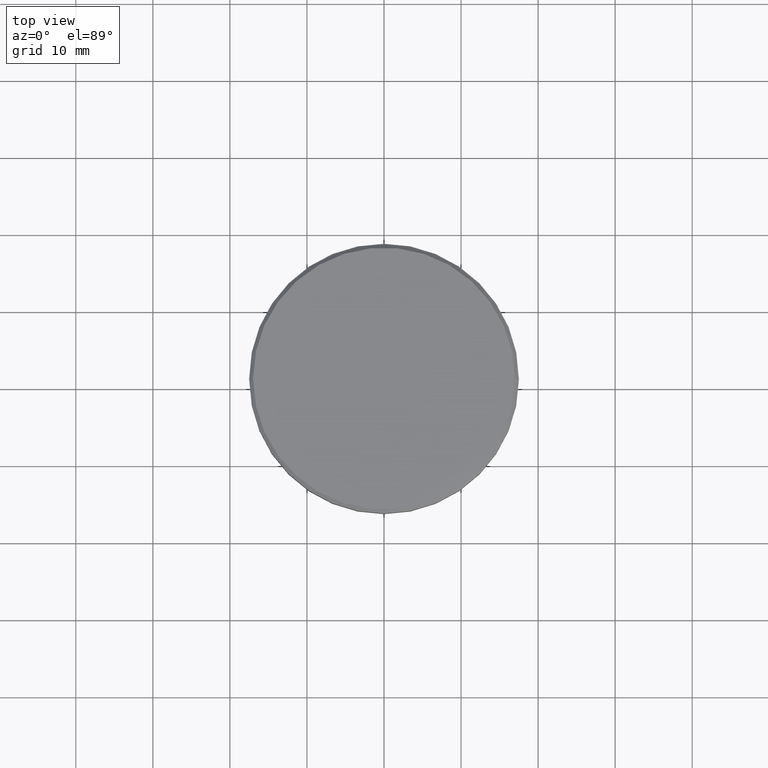
[diagram: clean part render]
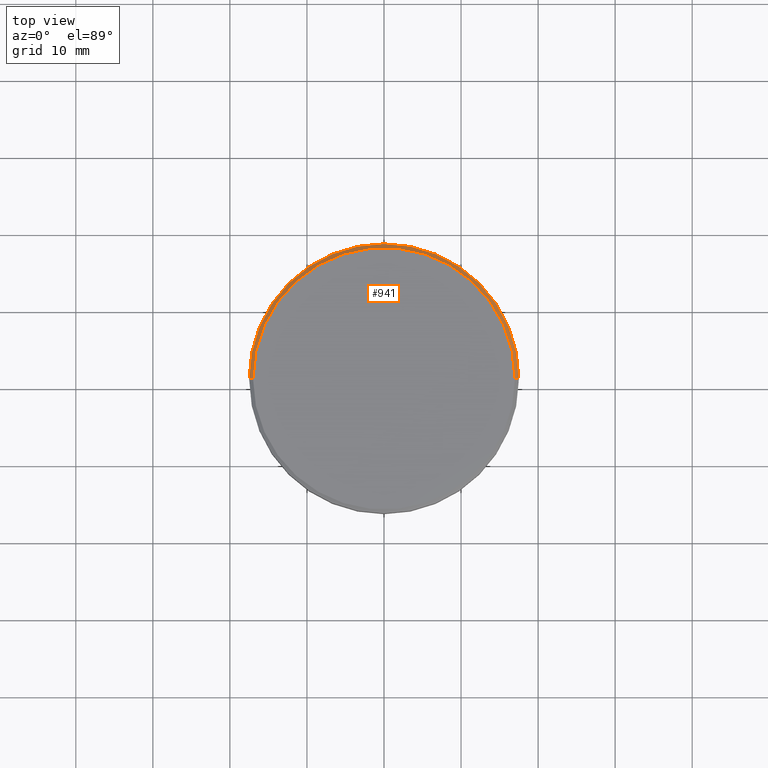
[diagram: same view with one face highlighted and labeled with its STEP entity id]
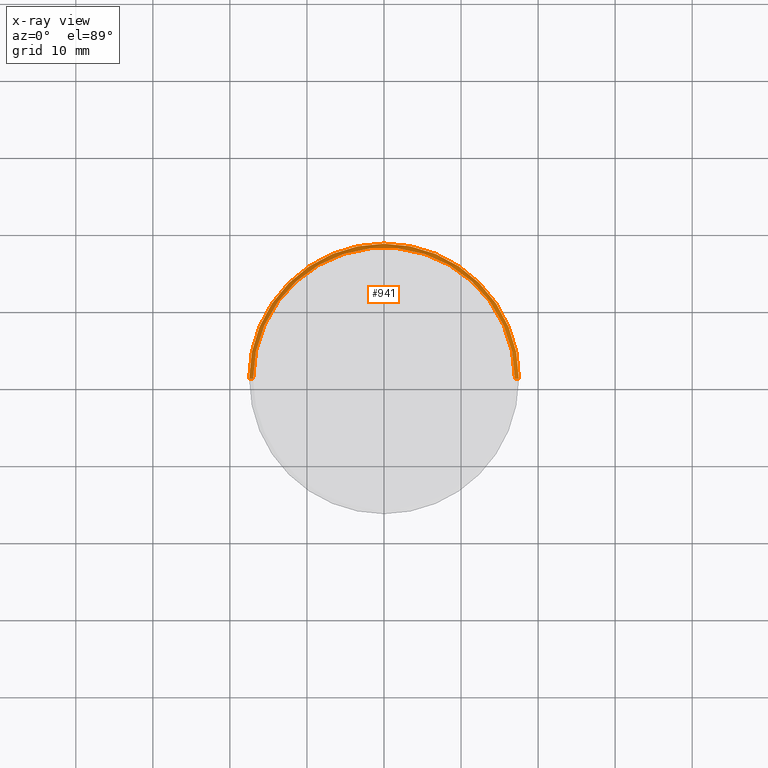
[diagram: x-ray of the same camera — body ghosted, the highlighted face saturated]
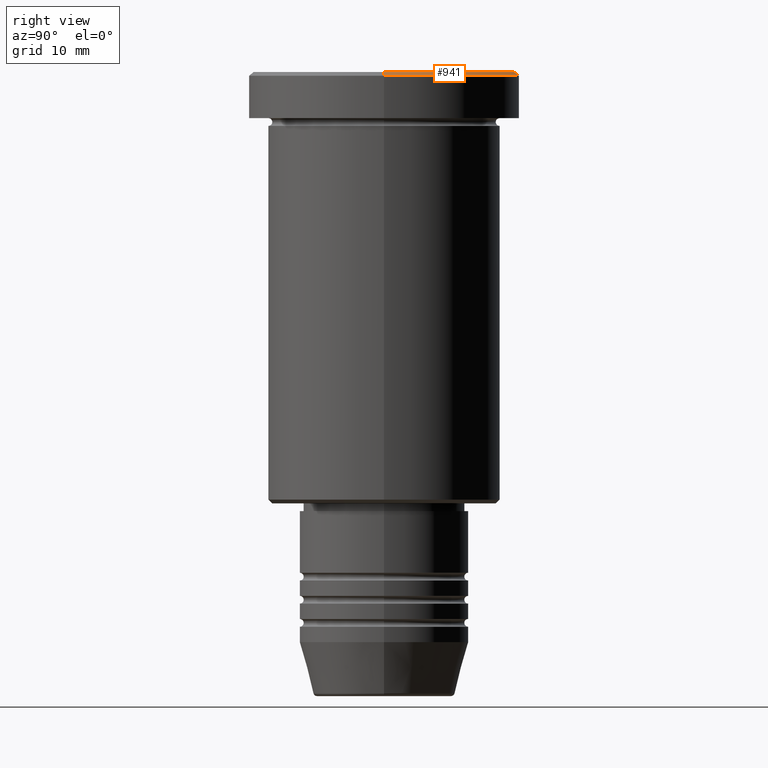
[diagram: same view with one face highlighted and labeled with its STEP entity id]
A machine part, top view. The second image highlights one B-rep face of the part: STEP entity #941.
The next image is the same camera in x-ray: the body ghosted, the highlighted face saturated — about 0% of this face is hidden behind the body in this view.
A second angle (right view) of the same face is appended — the face is thin or edge-on in the first view.
In plain terms, the highlighted conical surface has half-angle 45 deg.
Its self-contained STEP definition (entity closure, byte-faithful):
#18 = CONICAL_SURFACE ( 'NONE', #1140, 17.00000000000000000, 0.7853981633974346233 ) ;
#107 = VECTOR ( 'NONE', #765, 1000.000000000000000 ) ;
#129 = FACE_OUTER_BOUND ( 'NONE', #672, .T. ) ;
#157 = CARTESIAN_POINT ( 'NONE',  ( 0.000000000000000000, 0.000000000000000000, -0.5000000000000142109 ) ) ;
#163 = DIRECTION ( 'NONE',  ( 0.000000000000000000, 0.000000000000000000, -1.000000000000000000 ) ) ;
#184 = CARTESIAN_POINT ( 'NONE',  ( 0.000000000000000000, 0.000000000000000000, 0.000000000000000000 ) ) ;
#189 = EDGE_CURVE ( 'NONE', #704, #594, #692, .T. ) ;
#202 = AXIS2_PLACEMENT_3D ( 'NONE', #157, #163, #974 ) ;
#231 = CARTESIAN_POINT ( 'NONE',  ( 17.00000000000000000, 2.081899558550500280E-15, 0.000000000000000000 ) ) ;
#277 = ORIENTED_EDGE ( 'NONE', *, *, #837, .F. ) ;
#328 = CARTESIAN_POINT ( 'NONE',  ( -17.00000000000000000, 0.000000000000000000, 0.000000000000000000 ) ) ;
#347 = EDGE_CURVE ( 'NONE', #704, #1027, #859, .T. ) ;
#356 = CARTESIAN_POINT ( 'NONE',  ( 17.00000000000000000, 2.112515728529184067E-15, 0.000000000000000000 ) ) ;
#382 = ORIENTED_EDGE ( 'NONE', *, *, #189, .F. ) ;
#441 = CARTESIAN_POINT ( 'NONE',  ( -17.00000000000000000, 0.000000000000000000, 0.000000000000000000 ) ) ;
#483 = DIRECTION ( 'NONE',  ( -1.000000000000000000, 0.000000000000000000, 0.000000000000000000 ) ) ;
#563 = DIRECTION ( 'NONE',  ( 1.000000000000000000, 0.000000000000000000, 0.000000000000000000 ) ) ;
#594 = VERTEX_POINT ( 'NONE', #328 ) ;
#614 = ORIENTED_EDGE ( 'NONE', *, *, #347, .T. ) ;
#653 = DIRECTION ( 'NONE',  ( 0.000000000000000000, 0.000000000000000000, -1.000000000000000000 ) ) ;
#672 = EDGE_LOOP ( 'NONE', ( #382, #614, #1013, #277 ) ) ;
#692 = CIRCLE ( 'NONE', #903, 17.00000000000000000 ) ;
#704 = VERTEX_POINT ( 'NONE', #356 ) ;
#714 = VECTOR ( 'NONE', #1166, 1000.000000000000000 ) ;
#765 = DIRECTION ( 'NONE',  ( 0.7071067811865378028, 8.659560562354814529E-17, -0.7071067811865573427 ) ) ;
#832 = CARTESIAN_POINT ( 'NONE',  ( 17.50000000000000000, 0.000000000000000000, -0.5000000000000142109 ) ) ;
#837 = EDGE_CURVE ( 'NONE', #594, #870, #989, .T. ) ;
#853 = CARTESIAN_POINT ( 'NONE',  ( 0.000000000000000000, 0.000000000000000000, 0.000000000000000000 ) ) ;
#859 = LINE ( 'NONE', #231, #107 ) ;
#869 = CARTESIAN_POINT ( 'NONE',  ( -17.50000000000000000, 2.143131898507868248E-15, -0.5000000000000142109 ) ) ;
#870 = VERTEX_POINT ( 'NONE', #869 ) ;
#903 = AXIS2_PLACEMENT_3D ( 'NONE', #184, #933, #563 ) ;
#929 = EDGE_CURVE ( 'NONE', #870, #1027, #1018, .T. ) ;
#933 = DIRECTION ( 'NONE',  ( -0.000000000000000000, -0.000000000000000000, 1.000000000000000000 ) ) ;
#941 = ADVANCED_FACE ( 'NONE', ( #129 ), #18, .T. ) ;
#974 = DIRECTION ( 'NONE',  ( 1.000000000000000000, 0.000000000000000000, 0.000000000000000000 ) ) ;
#989 = LINE ( 'NONE', #441, #714 ) ;
#1013 = ORIENTED_EDGE ( 'NONE', *, *, #929, .F. ) ;
#1018 = CIRCLE ( 'NONE', #202, 17.50000000000000000 ) ;
#1027 = VERTEX_POINT ( 'NONE', #832 ) ;
#1140 = AXIS2_PLACEMENT_3D ( 'NONE', #853, #653, #483 ) ;
#1166 = DIRECTION ( 'NONE',  ( -0.7071067811865378028, 0.000000000000000000, -0.7071067811865573427 ) ) ;